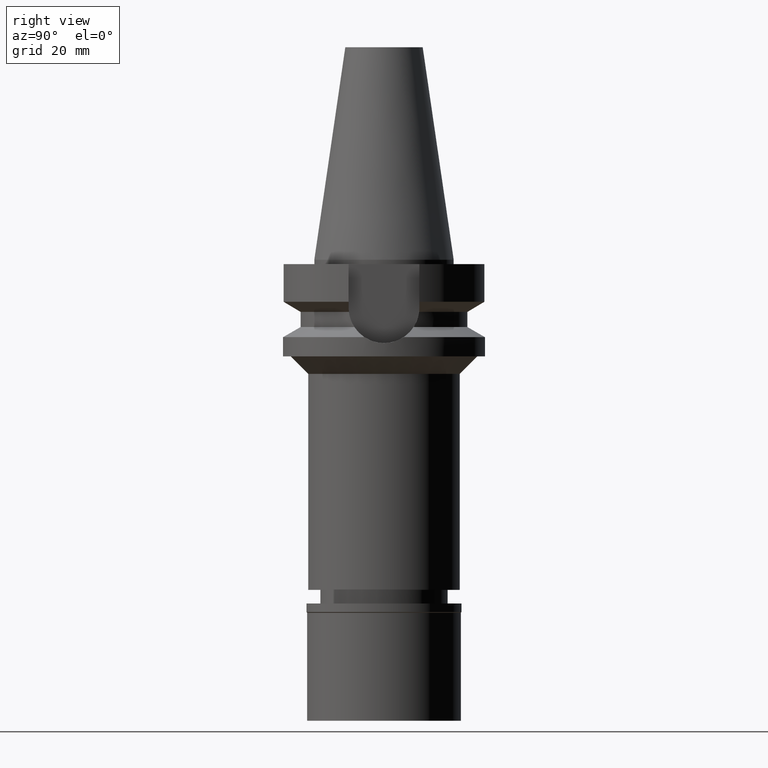
[diagram: clean part render]
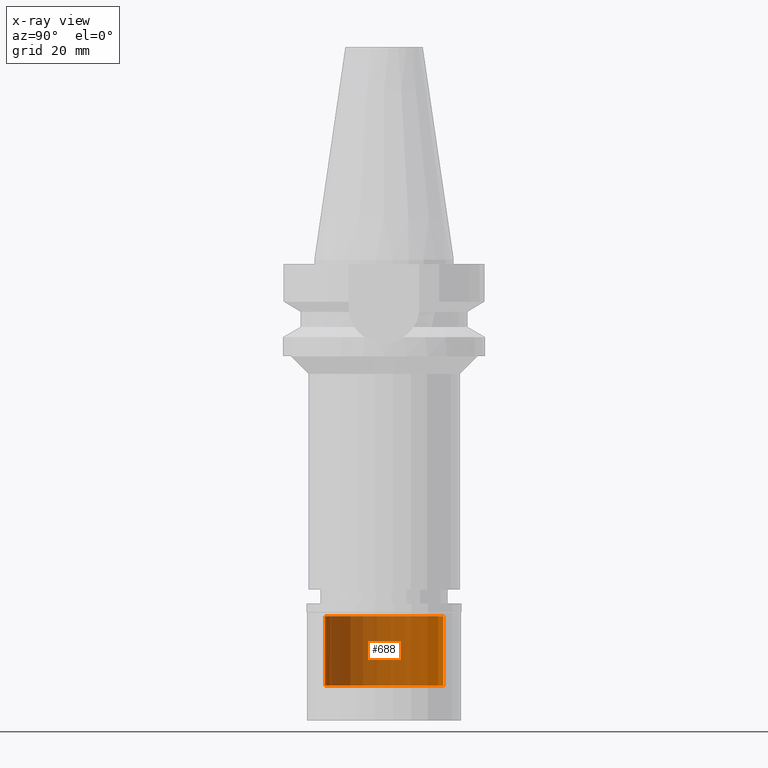
[diagram: x-ray — body ghosted, one internal face saturated and labeled with its STEP entity id]
A machine part, right view, then the same camera in x-ray: the body is ghosted and one INTERNAL B-rep face — a face not visible from any outside direction — is saturated and labeled: STEP entity #688.
In plain terms, the highlighted cylindrical surface (partial cylindrical patch) has radius 13.5 mm, axis along (0, 0, -1).
Its self-contained STEP definition (entity closure, byte-faithful):
#115 = DIRECTION ( 'NONE',  ( 0.0000000000000000000, -1.000000000000000000, 0.0000000000000000000 ) ) ;
#201 = DIRECTION ( 'NONE',  ( 0.0000000000000000000, -1.000000000000000000, 0.0000000000000000000 ) ) ;
#279 = EDGE_CURVE ( 'NONE', #1660, #2308, #2147, .T. ) ;
#434 = VECTOR ( 'NONE', #876, 1000.000000000000000 ) ;
#647 = CYLINDRICAL_SURFACE ( 'NONE', #1991, 13.50000000000000000 ) ;
#688 = ADVANCED_FACE ( 'NONE', ( #2563 ), #647, .F. ) ;
#876 = DIRECTION ( 'NONE',  ( 0.0000000000000000000, 0.0000000000000000000, 1.000000000000000000 ) ) ;
#1052 = VERTEX_POINT ( 'NONE', #2197 ) ;
#1074 = ORIENTED_EDGE ( 'NONE', *, *, #2080, .T. ) ;
#1110 = CARTESIAN_POINT ( 'NONE',  ( 0.0000000000000000000, -13.50000000000000000, -18.70000000000000284 ) ) ;
#1134 = EDGE_LOOP ( 'NONE', ( #2780, #2799, #2495, #1074 ) ) ;
#1220 = DIRECTION ( 'NONE',  ( 0.0000000000000000000, 0.0000000000000000000, -1.000000000000000000 ) ) ;
#1249 = AXIS2_PLACEMENT_3D ( 'NONE', #1438, #1220, #115 ) ;
#1261 = CARTESIAN_POINT ( 'NONE',  ( 0.0000000000000000000, 13.50000000000000000, -2.899999999999999911 ) ) ;
#1307 = LINE ( 'NONE', #1993, #2517 ) ;
#1399 = CARTESIAN_POINT ( 'NONE',  ( 0.0000000000000000000, 0.0000000000000000000, -2.899999999999999911 ) ) ;
#1438 = CARTESIAN_POINT ( 'NONE',  ( 0.0000000000000000000, 0.0000000000000000000, -18.70000000000000284 ) ) ;
#1555 = LINE ( 'NONE', #2221, #434 ) ;
#1606 = CARTESIAN_POINT ( 'NONE',  ( 0.0000000000000000000, -13.50000000000000000, -2.899999999999999911 ) ) ;
#1660 = VERTEX_POINT ( 'NONE', #1261 ) ;
#1675 = EDGE_CURVE ( 'NONE', #2191, #1052, #2375, .T. ) ;
#1730 = DIRECTION ( 'NONE',  ( 0.0000000000000000000, 0.0000000000000000000, 1.000000000000000000 ) ) ;
#1781 = DIRECTION ( 'NONE',  ( 0.0000000000000000000, 0.0000000000000000000, -1.000000000000000000 ) ) ;
#1836 = CARTESIAN_POINT ( 'NONE',  ( 0.0000000000000000000, 0.0000000000000000000, 0.0000000000000000000 ) ) ;
#1837 = DIRECTION ( 'NONE',  ( 0.0000000000000000000, 0.0000000000000000000, 1.000000000000000000 ) ) ;
#1988 = AXIS2_PLACEMENT_3D ( 'NONE', #1399, #1837, #2335 ) ;
#1991 = AXIS2_PLACEMENT_3D ( 'NONE', #1836, #1781, #201 ) ;
#1993 = CARTESIAN_POINT ( 'NONE',  ( 0.0000000000000000000, -13.50000000000000000, -18.70000000000000284 ) ) ;
#2001 = EDGE_CURVE ( 'NONE', #2191, #2308, #1307, .T. ) ;
#2080 = EDGE_CURVE ( 'NONE', #1052, #1660, #1555, .T. ) ;
#2147 = CIRCLE ( 'NONE', #1988, 13.50000000000000000 ) ;
#2191 = VERTEX_POINT ( 'NONE', #1110 ) ;
#2197 = CARTESIAN_POINT ( 'NONE',  ( 0.0000000000000000000, 13.50000000000000000, -18.70000000000000284 ) ) ;
#2221 = CARTESIAN_POINT ( 'NONE',  ( 0.0000000000000000000, 13.50000000000000000, -18.70000000000000284 ) ) ;
#2308 = VERTEX_POINT ( 'NONE', #1606 ) ;
#2335 = DIRECTION ( 'NONE',  ( 0.0000000000000000000, 1.000000000000000000, 0.0000000000000000000 ) ) ;
#2375 = CIRCLE ( 'NONE', #1249, 13.50000000000000000 ) ;
#2495 = ORIENTED_EDGE ( 'NONE', *, *, #1675, .T. ) ;
#2517 = VECTOR ( 'NONE', #1730, 1000.000000000000000 ) ;
#2563 = FACE_OUTER_BOUND ( 'NONE', #1134, .T. ) ;
#2780 = ORIENTED_EDGE ( 'NONE', *, *, #279, .T. ) ;
#2799 = ORIENTED_EDGE ( 'NONE', *, *, #2001, .F. ) ;